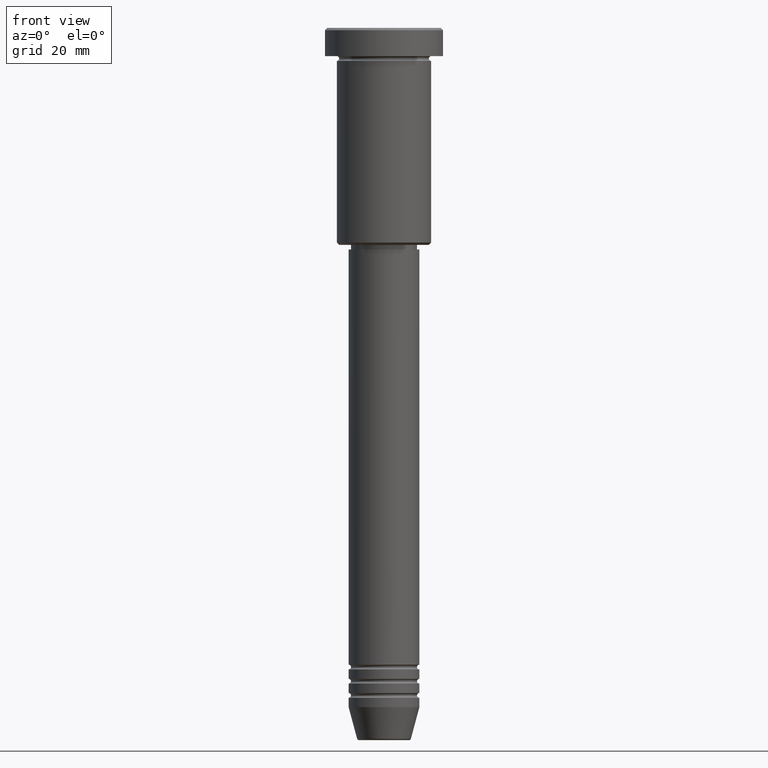
[diagram: clean part render]
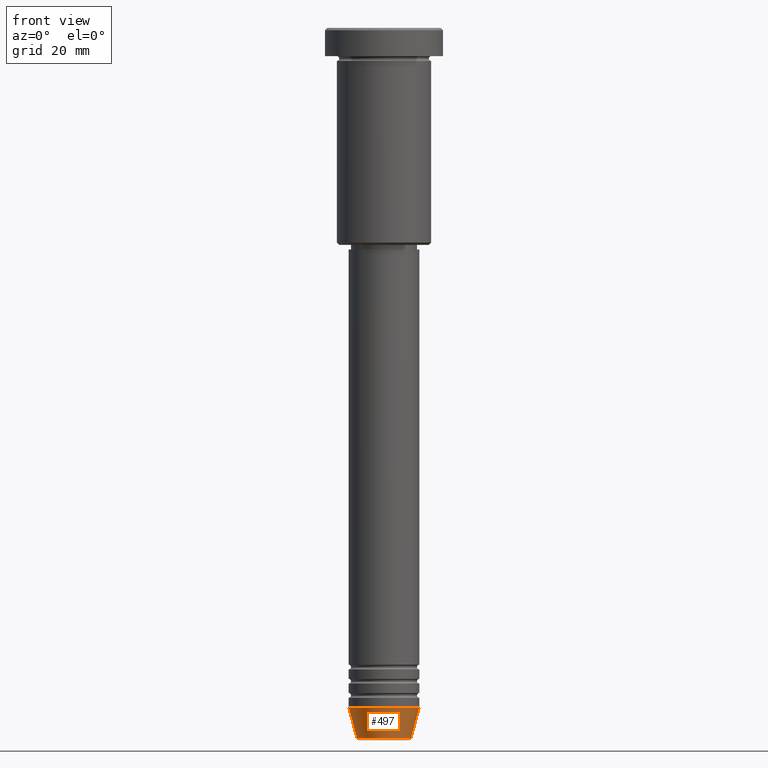
[diagram: same view with one face highlighted and labeled with its STEP entity id]
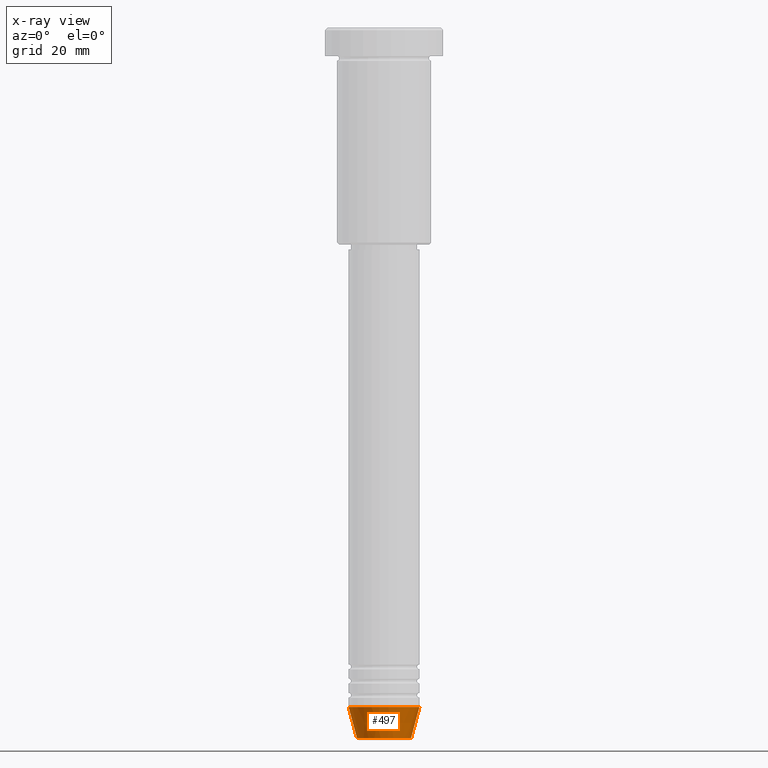
[diagram: x-ray of the same camera — body ghosted, the highlighted face saturated]
A machine part, front view. The second image highlights one B-rep face of the part: STEP entity #497.
The next image is the same camera in x-ray: the body ghosted, the highlighted face saturated — about 0% of this face is hidden behind the body in this view.
In plain terms, the highlighted conical surface has half-angle 15 deg.
Its self-contained STEP definition (entity closure, byte-faithful):
#4 = ORIENTED_EDGE ( 'NONE', *, *, #1107, .T. ) ;
#51 = DIRECTION ( 'NONE',  ( 1.000000000000000000, 0.000000000000000000, 0.000000000000000000 ) ) ;
#92 = CIRCLE ( 'NONE', #1100, 5.723655072137197486 ) ;
#118 = VECTOR ( 'NONE', #761, 1000.000000000000000 ) ;
#130 = LINE ( 'NONE', #1026, #118 ) ;
#143 = CARTESIAN_POINT ( 'NONE',  ( 0.000000000000000000, 0.000000000000000000, -144.0000000000000000 ) ) ;
#172 = CARTESIAN_POINT ( 'NONE',  ( 7.500000000000000000, 0.000000000000000000, -144.0000000000000000 ) ) ;
#182 = EDGE_CURVE ( 'NONE', #919, #483, #130, .T. ) ;
#212 = CARTESIAN_POINT ( 'NONE',  ( 5.723655072137197486, 0.000000000000000000, -150.6294095225512137 ) ) ;
#226 = AXIS2_PLACEMENT_3D ( 'NONE', #143, #325, #51 ) ;
#288 = ORIENTED_EDGE ( 'NONE', *, *, #182, .F. ) ;
#325 = DIRECTION ( 'NONE',  ( -0.000000000000000000, -0.000000000000000000, 1.000000000000000000 ) ) ;
#346 = LINE ( 'NONE', #172, #1052 ) ;
#444 = DIRECTION ( 'NONE',  ( 0.2588190451025213501, 0.000000000000000000, 0.9659258262890680902 ) ) ;
#445 = CARTESIAN_POINT ( 'NONE',  ( 7.500000000000000000, 0.000000000000000000, -144.0000000000000000 ) ) ;
#483 = VERTEX_POINT ( 'NONE', #702 ) ;
#497 = ADVANCED_FACE ( 'NONE', ( #807 ), #1113, .T. ) ;
#519 = EDGE_CURVE ( 'NONE', #913, #860, #346, .T. ) ;
#532 = DIRECTION ( 'NONE',  ( -0.000000000000000000, -0.000000000000000000, 1.000000000000000000 ) ) ;
#554 = CARTESIAN_POINT ( 'NONE',  ( -5.723655072137197486, 8.097153428560739859E-16, -150.6294095225512137 ) ) ;
#598 = AXIS2_PLACEMENT_3D ( 'NONE', #981, #532, #961 ) ;
#623 = EDGE_CURVE ( 'NONE', #483, #860, #772, .T. ) ;
#643 = ORIENTED_EDGE ( 'NONE', *, *, #623, .F. ) ;
#675 = CARTESIAN_POINT ( 'NONE',  ( 0.000000000000000000, 0.000000000000000000, -150.6294095225512137 ) ) ;
#702 = CARTESIAN_POINT ( 'NONE',  ( -7.500000000000000000, 9.184850993605147944E-16, -144.0000000000000000 ) ) ;
#761 = DIRECTION ( 'NONE',  ( -0.2588190451025213501, 3.169619151431772337E-17, 0.9659258262890680902 ) ) ;
#772 = CIRCLE ( 'NONE', #226, 7.500000000000000000 ) ;
#807 = FACE_OUTER_BOUND ( 'NONE', #930, .T. ) ;
#860 = VERTEX_POINT ( 'NONE', #445 ) ;
#913 = VERTEX_POINT ( 'NONE', #212 ) ;
#919 = VERTEX_POINT ( 'NONE', #554 ) ;
#930 = EDGE_LOOP ( 'NONE', ( #288, #4, #960, #643 ) ) ;
#960 = ORIENTED_EDGE ( 'NONE', *, *, #519, .T. ) ;
#961 = DIRECTION ( 'NONE',  ( 1.000000000000000000, 0.000000000000000000, 0.000000000000000000 ) ) ;
#981 = CARTESIAN_POINT ( 'NONE',  ( 0.000000000000000000, 0.000000000000000000, -144.0000000000000000 ) ) ;
#1026 = CARTESIAN_POINT ( 'NONE',  ( -7.500000000000000000, 9.184850993605147944E-16, -144.0000000000000000 ) ) ;
#1041 = DIRECTION ( 'NONE',  ( -0.000000000000000000, -0.000000000000000000, 1.000000000000000000 ) ) ;
#1048 = DIRECTION ( 'NONE',  ( 1.000000000000000000, 0.000000000000000000, 0.000000000000000000 ) ) ;
#1052 = VECTOR ( 'NONE', #444, 1000.000000000000000 ) ;
#1100 = AXIS2_PLACEMENT_3D ( 'NONE', #675, #1041, #1048 ) ;
#1107 = EDGE_CURVE ( 'NONE', #919, #913, #92, .T. ) ;
#1113 = CONICAL_SURFACE ( 'NONE', #598, 7.500000000000000000, 0.2617993877991500740 ) ;